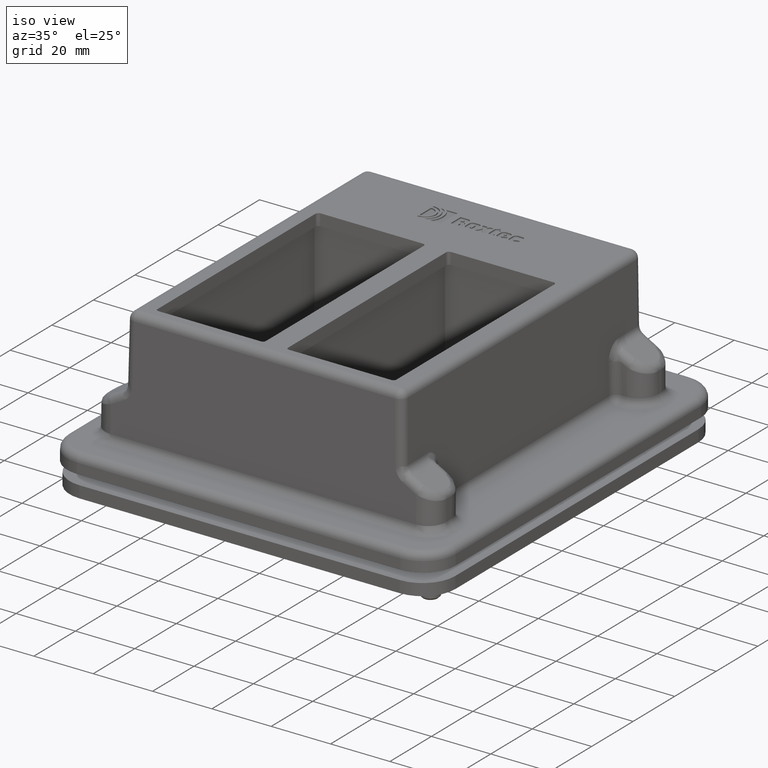
[diagram: clean part render]
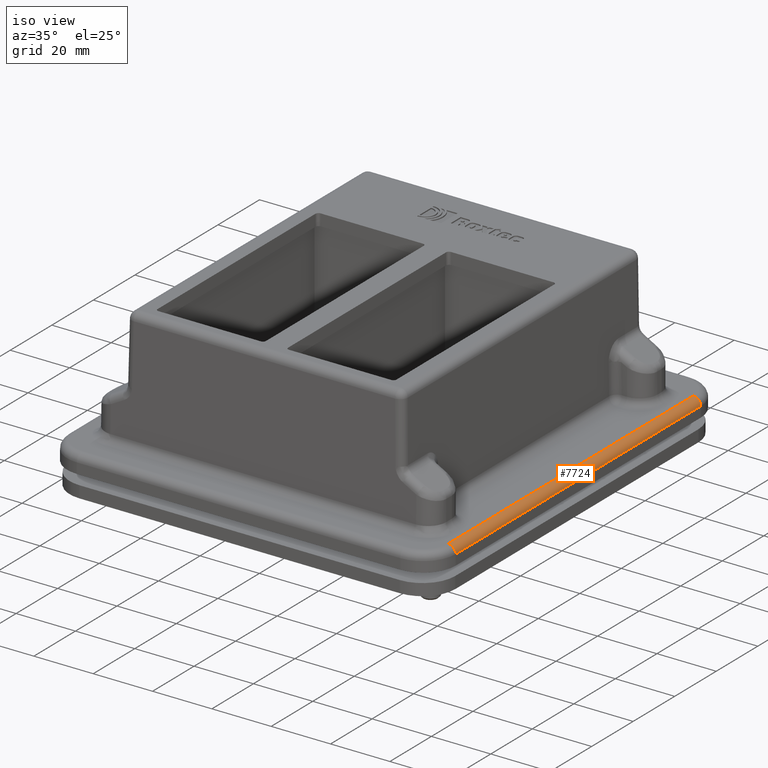
[diagram: same view with one face highlighted and labeled with its STEP entity id]
A machine part, iso view. The second image highlights one B-rep face of the part: STEP entity #7724.
In plain terms, the highlighted cylindrical surface (edge-blend (fillet) strip) has radius 2.5 mm, axis along (0, -1, 0).
Its self-contained STEP definition (entity closure, byte-faithful):
#228=CYLINDRICAL_SURFACE('',#8325,2.5);
#462=LINE('',#11586,#1106);
#472=LINE('',#11636,#1116);
#1106=VECTOR('',#9396,10.);
#1116=VECTOR('',#9460,10.);
#1909=FACE_OUTER_BOUND('',#2370,.T.);
#2370=EDGE_LOOP('',(#5430,#5431,#5432,#5433));
#2816=CIRCLE('',#8307,2.49999999999999);
#2826=CIRCLE('',#8323,2.5);
#3162=VERTEX_POINT('',#11549);
#3174=VERTEX_POINT('',#11585);
#3180=VERTEX_POINT('',#11606);
#3187=VERTEX_POINT('',#11632);
#3985=EDGE_CURVE('',#3162,#3174,#462,.T.);
#3996=EDGE_CURVE('',#3174,#3180,#2816,.T.);
#4009=EDGE_CURVE('',#3187,#3162,#2826,.T.);
#4011=EDGE_CURVE('',#3180,#3187,#472,.T.);
#5430=ORIENTED_EDGE('',*,*,#3996,.T.);
#5431=ORIENTED_EDGE('',*,*,#4011,.T.);
#5432=ORIENTED_EDGE('',*,*,#4009,.T.);
#5433=ORIENTED_EDGE('',*,*,#3985,.T.);
#7724=ADVANCED_FACE('',(#1909),#228,.T.);
#8307=AXIS2_PLACEMENT_3D('',#11607,#9419,#9420);
#8323=AXIS2_PLACEMENT_3D('',#11633,#9454,#9455);
#8325=AXIS2_PLACEMENT_3D('',#11635,#9458,#9459);
#9396=DIRECTION('',(-1.36642833800019E-16,1.,-1.67339209039617E-32));
#9419=DIRECTION('center_axis',(0.,-1.,0.));
#9420=DIRECTION('ref_axis',(1.,0.,1.22464679914735E-16));
#9454=DIRECTION('center_axis',(0.,1.,0.));
#9455=DIRECTION('ref_axis',(-1.22464679914735E-16,0.,1.));
#9458=DIRECTION('center_axis',(1.36642833800019E-16,-1.,1.67339209039617E-32));
#9459=DIRECTION('ref_axis',(0.707106781186547,9.66210743805398E-17,0.707106781186548));
#9460=DIRECTION('',(1.36642833800019E-16,-1.,1.67339209039617E-32));
#11549=CARTESIAN_POINT('',(65.5,-59.,-39.5));
#11585=CARTESIAN_POINT('',(65.5,59.,-39.5));
#11586=CARTESIAN_POINT('',(65.5,32.5,-39.5));
#11606=CARTESIAN_POINT('',(63.,59.,-37.));
#11607=CARTESIAN_POINT('Origin',(63.,59.,-39.5));
#11632=CARTESIAN_POINT('',(63.,-59.,-37.));
#11633=CARTESIAN_POINT('Origin',(63.,-59.,-39.5));
#11635=CARTESIAN_POINT('Origin',(63.,32.5,-39.5));
#11636=CARTESIAN_POINT('',(63.,32.5,-37.));